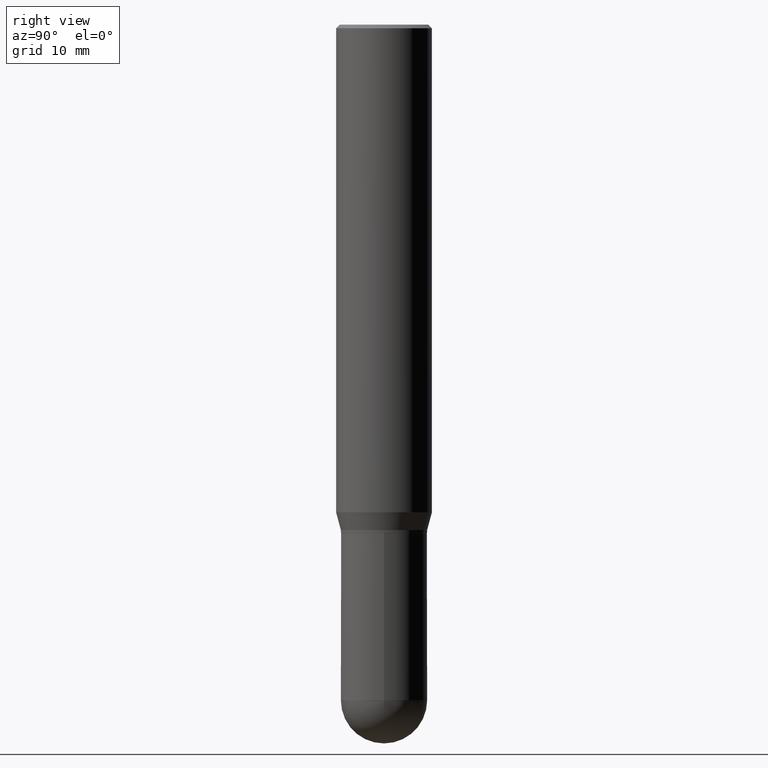
[diagram: clean part render]
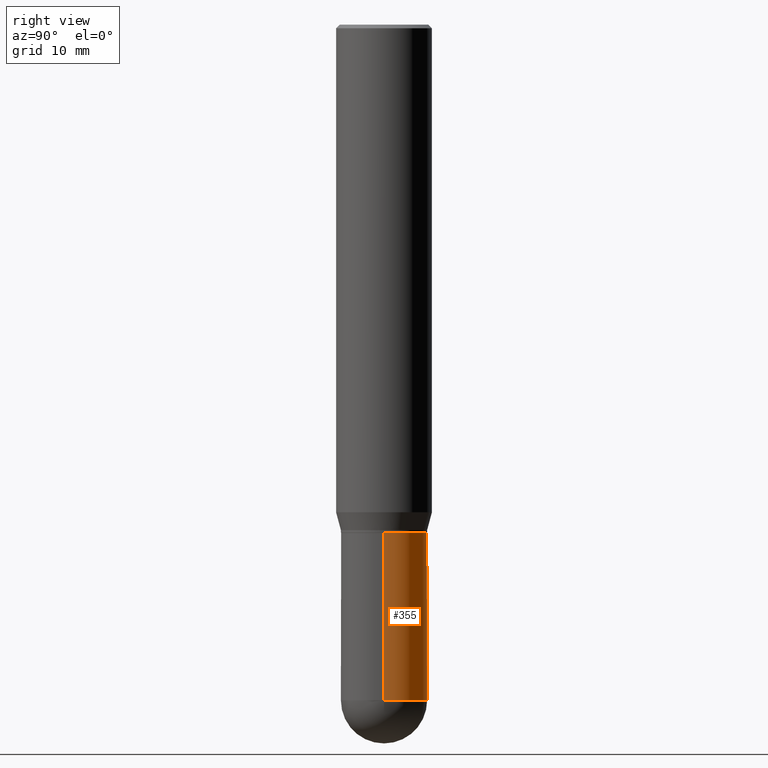
[diagram: same view with one face highlighted and labeled with its STEP entity id]
A machine part, right view. The second image highlights one B-rep face of the part: STEP entity #355.
In plain terms, the highlighted cylindrical surface (partial cylindrical patch) has radius 4.4996 mm, axis along (-0, 0, 1).
Its self-contained STEP definition (entity closure, byte-faithful):
#1 = CARTESIAN_POINT ( 'NONE',  ( 0.000000000000000000, 0.000000000000000000, 0.000000000000000000 ) ) ;
#29 = CARTESIAN_POINT ( 'NONE',  ( 1.237031838352190236E-15, 0.1771499999999903430, -2.775650000000000173 ) ) ;
#33 = CARTESIAN_POINT ( 'NONE',  ( 6.787765491887772680E-29, -9.691130178159974964E-15, -2.775649999999999729 ) ) ;
#38 = EDGE_CURVE ( 'NONE', #58, #492, #188, .T. ) ;
#44 = DIRECTION ( 'NONE',  ( -2.445468806185136877E-29, 3.491481338843145188E-15, 1.000000000000000000 ) ) ;
#45 = VECTOR ( 'NONE', #202, 39.37007874015748143 ) ;
#53 = EDGE_CURVE ( 'NONE', #195, #58, #356, .T. ) ;
#58 = VERTEX_POINT ( 'NONE', #159 ) ;
#60 = ORIENTED_EDGE ( 'NONE', *, *, #38, .F. ) ;
#69 = DIRECTION ( 'NONE',  ( 1.000000000000000000, -6.982962677686266711E-15, 4.876176775795934672E-29 ) ) ;
#78 = CARTESIAN_POINT ( 'NONE',  ( 5.102959757866523939E-29, -7.285674109763990928E-15, -2.086699999999999999 ) ) ;
#81 = EDGE_CURVE ( 'NONE', #192, #492, #154, .T. ) ;
#82 = ORIENTED_EDGE ( 'NONE', *, *, #81, .T. ) ;
#98 = CARTESIAN_POINT ( 'NONE',  ( 0.1771500000000000574, -9.725433982314104551E-15, -2.775649999999999729 ) ) ;
#110 = CARTESIAN_POINT ( 'NONE',  ( 6.787765491887772680E-29, -9.691130178159974964E-15, -2.775649999999999729 ) ) ;
#140 = CARTESIAN_POINT ( 'NONE',  ( -0.1771500000000000852, -7.229675687562965256E-15, -2.086699999999999999 ) ) ;
#154 = LINE ( 'NONE', #400, #309 ) ;
#159 = CARTESIAN_POINT ( 'NONE',  ( 0.1771500000000000852, -8.522705948116114900E-15, -2.086699999999999999 ) ) ;
#187 = DIRECTION ( 'NONE',  ( 1.000000000000000000, -6.982962677686270655E-15, 0.000000000000000000 ) ) ;
#188 = CIRCLE ( 'NONE', #484, 0.1771500000000000852 ) ;
#192 = VERTEX_POINT ( 'NONE', #310 ) ;
#195 = VERTEX_POINT ( 'NONE', #98 ) ;
#202 = DIRECTION ( 'NONE',  ( -2.445468806185136877E-29, 3.491481338843145188E-15, 1.000000000000000000 ) ) ;
#209 = DIRECTION ( 'NONE',  ( -2.445468806185136597E-29, 3.491481338843145583E-15, 1.000000000000000000 ) ) ;
#216 = EDGE_LOOP ( 'NONE', ( #421, #82, #60, #317, #375 ) ) ;
#251 = DIRECTION ( 'NONE',  ( 1.000000000000000000, -6.982962677686270655E-15, 0.000000000000000000 ) ) ;
#254 = CIRCLE ( 'NONE', #380, 0.1771500000000000574 ) ;
#271 = FACE_OUTER_BOUND ( 'NONE', #216, .T. ) ;
#275 = DIRECTION ( 'NONE',  ( -2.445468806185136597E-29, 3.491481338843145583E-15, 1.000000000000000000 ) ) ;
#284 = VERTEX_POINT ( 'NONE', #29 ) ;
#293 = AXIS2_PLACEMENT_3D ( 'NONE', #1, #275, #69 ) ;
#309 = VECTOR ( 'NONE', #44, 39.37007874015748143 ) ;
#310 = CARTESIAN_POINT ( 'NONE',  ( -0.1771500000000000574, -7.229675687562965256E-15, -2.775649999999999729 ) ) ;
#317 = ORIENTED_EDGE ( 'NONE', *, *, #53, .F. ) ;
#324 = CIRCLE ( 'NONE', #411, 0.1771500000000000574 ) ;
#355 = ADVANCED_FACE ( 'NONE', ( #271 ), #462, .T. ) ;
#356 = LINE ( 'NONE', #399, #45 ) ;
#375 = ORIENTED_EDGE ( 'NONE', *, *, #480, .T. ) ;
#380 = AXIS2_PLACEMENT_3D ( 'NONE', #110, #496, #251 ) ;
#399 = CARTESIAN_POINT ( 'NONE',  ( 0.1771500000000000574, -1.237031838352122591E-15, 8.638147158322501361E-30 ) ) ;
#400 = CARTESIAN_POINT ( 'NONE',  ( -0.1771500000000000574, 1.258726456399017887E-15, -8.713893512386568128E-30 ) ) ;
#411 = AXIS2_PLACEMENT_3D ( 'NONE', #33, #512, #187 ) ;
#421 = ORIENTED_EDGE ( 'NONE', *, *, #485, .T. ) ;
#462 = CYLINDRICAL_SURFACE ( 'NONE', #293, 0.1771500000000000574 ) ;
#480 = EDGE_CURVE ( 'NONE', #195, #284, #254, .T. ) ;
#484 = AXIS2_PLACEMENT_3D ( 'NONE', #78, #209, #508 ) ;
#485 = EDGE_CURVE ( 'NONE', #284, #192, #324, .T. ) ;
#492 = VERTEX_POINT ( 'NONE', #140 ) ;
#496 = DIRECTION ( 'NONE',  ( -2.445468806185136597E-29, 3.491481338843145583E-15, 1.000000000000000000 ) ) ;
#508 = DIRECTION ( 'NONE',  ( 1.000000000000000000, -6.982962677686269077E-15, 0.000000000000000000 ) ) ;
#512 = DIRECTION ( 'NONE',  ( -2.445468806185136597E-29, 3.491481338843145583E-15, 1.000000000000000000 ) ) ;